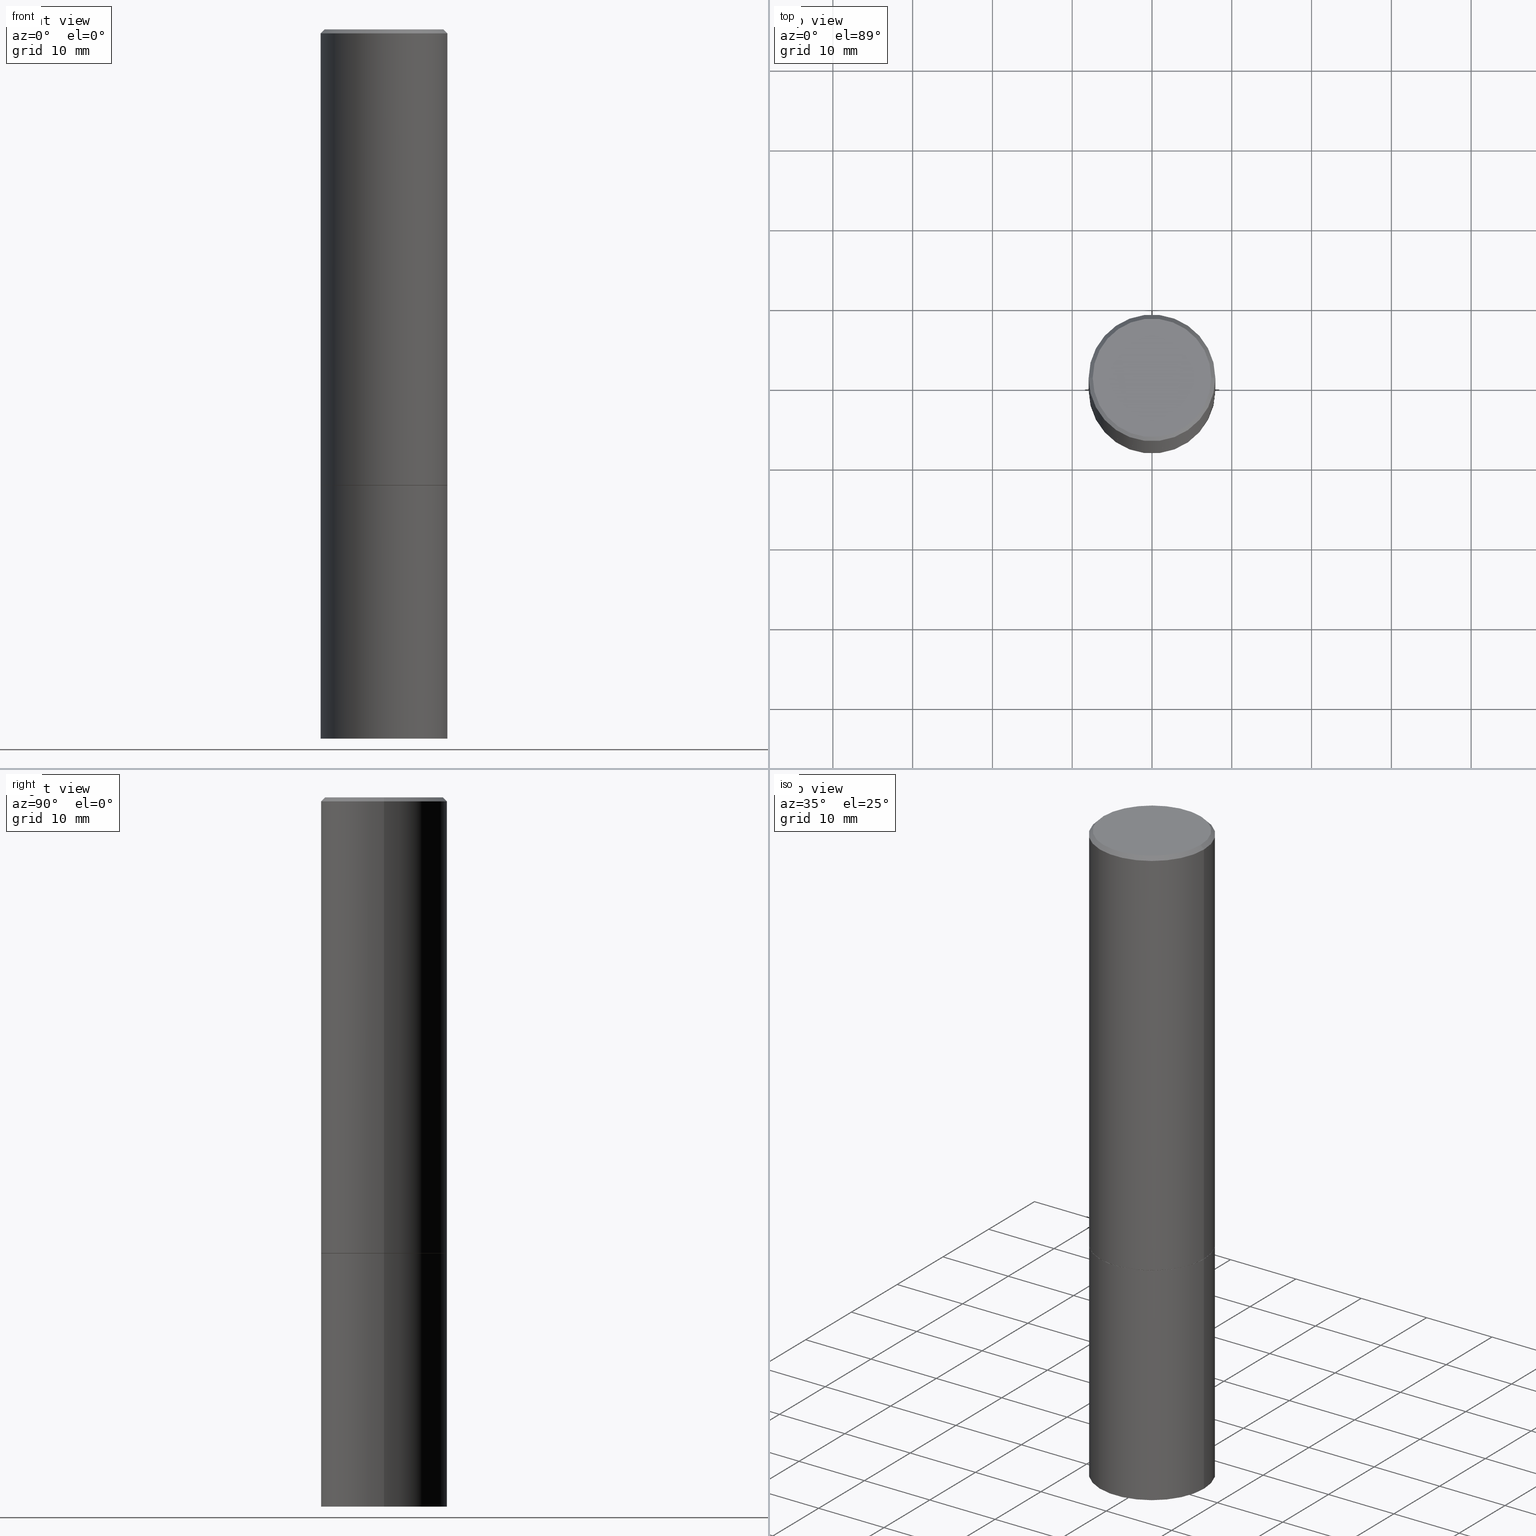
[diagram: canonical four-view strip — front | top / right | iso, engineering-drawing reading convention]
A machine part, canonical four-view strip (front | top / right | iso — engineering-drawing reading convention). The complete STEP part file that produces these views, byte-faithful:
ISO-10303-21;
HEADER;
FILE_DESCRIPTION (( 'STEP AP203' ),
    '1' );
FILE_NAME ('39767.STEP',
    '2024-02-28T01:19:56',
    ( '' ),
    ( '' ),
    'SwSTEP 2.0',
    'SolidWorks 2023',
    '' );
FILE_SCHEMA (( 'CONFIG_CONTROL_DESIGN' ));
ENDSEC;

DATA;
#1 = VECTOR ( 'NONE', #216, 39.37007874015748143 ) ;
#2 = AXIS2_PLACEMENT_3D ( 'NONE', #97, #326, #355 ) ;
#3 = CC_DESIGN_SECURITY_CLASSIFICATION ( #134, ( #245 ) ) ;
#4 = VERTEX_POINT ( 'NONE', #323 ) ;
#5 = ORIENTED_EDGE ( 'NONE', *, *, #88, .F. ) ;
#6 = EDGE_CURVE ( 'NONE', #4, #84, #361, .T. ) ;
#7 = VECTOR ( 'NONE', #283, 39.37007874015748143 ) ;
#8 = CARTESIAN_POINT ( 'NONE',  ( 0.000000000000000000, 0.000000000000000000, 0.000000000000000000 ) ) ;
#9 = CARTESIAN_POINT ( 'NONE',  ( 0.3125000000000000000, -1.440236052272796769E-14, -3.500000000000000000 ) ) ;
#10 = FACE_OUTER_BOUND ( 'NONE', #147, .T. ) ;
#11 = DATE_TIME_ROLE ( 'classification_date' ) ;
#12 = DIRECTION ( 'NONE',  ( 2.438088387897960049E-29, -3.491481338843145188E-15, -1.000000000000000000 ) ) ;
#13 = COORDINATED_UNIVERSAL_TIME_OFFSET ( 5, 0, .BEHIND. ) ;
#14 = ADVANCED_FACE ( 'NONE', ( #120 ), #256, .T. ) ;
#15 = DIRECTION ( 'NONE',  ( 1.000000000000000000, -6.982962677686266711E-15, 4.876176775795936353E-29 ) ) ;
#16 = FACE_OUTER_BOUND ( 'NONE', #292, .T. ) ;
#17 = DIRECTION ( 'NONE',  ( 1.000000000000000000, -6.982962677686266711E-15, 0.000000000000000000 ) ) ;
#18 = PERSON_AND_ORGANIZATION ( #358, #123 ) ;
#19 = FACE_OUTER_BOUND ( 'NONE', #193, .T. ) ;
#20 = LOCAL_TIME ( 20, 19, 56.00000000000000000, #13 ) ;
#21 = DIRECTION ( 'NONE',  ( -2.445468806185136597E-29, 3.491481338843145583E-15, 1.000000000000000000 ) ) ;
#22 = CYLINDRICAL_SURFACE ( 'NONE', #257, 0.3125000000000000000 ) ;
#23 = COORDINATED_UNIVERSAL_TIME_OFFSET ( 5, 0, .BEHIND. ) ;
#24 = ORIENTED_EDGE ( 'NONE', *, *, #139, .T. ) ;
#25 = MECHANICAL_CONTEXT ( 'NONE', #72, 'mechanical' ) ;
#26 = VERTEX_POINT ( 'NONE', #141 ) ;
#27 = APPROVAL_ROLE ( '' ) ;
#28 = CIRCLE ( 'NONE', #129, 0.3125000000000000000 ) ;
#29 = ORIENTED_EDGE ( 'NONE', *, *, #244, .F. ) ;
#30 = ORIENTED_EDGE ( 'NONE', *, *, #104, .F. ) ;
#31 = DIRECTION ( 'NONE',  ( -2.445468806185136597E-29, 3.491481338843145583E-15, 1.000000000000000000 ) ) ;
#32 = CIRCLE ( 'NONE', #45, 0.2924999999999998712 ) ;
#33 = VERTEX_POINT ( 'NONE', #263 ) ;
#34 = CARTESIAN_POINT ( 'NONE',  ( 0.3125000000000000000, -1.003451736783519063E-14, -2.248999999999999666 ) ) ;
#35 = PERSON_AND_ORGANIZATION_ROLE ( 'design_supplier' ) ;
#36 = ORIENTED_EDGE ( 'NONE', *, *, #192, .F. ) ;
#37 = CARTESIAN_POINT ( 'NONE',  ( -0.3124999999999999445, 2.220446049250312686E-15, -1.537167215704657671E-29 ) ) ;
#38 = CIRCLE ( 'NONE', #81, 0.3114999999999999991 ) ;
#39 = AXIS2_PLACEMENT_3D ( 'NONE', #61, #182, #220 ) ;
#40 = CARTESIAN_POINT ( 'NONE',  ( -0.2924999999999998712, 2.077431396611663005E-15, -1.440630921208799661E-29 ) ) ;
#41 = LINE ( 'NONE', #183, #1 ) ;
#42 = CARTESIAN_POINT ( 'NONE',  ( 0.3125000000000000000, -2.182175836776958347E-15, 1.523805242436230075E-29 ) ) ;
#43 = DIRECTION ( 'NONE',  ( 2.445468806185136597E-29, -3.491481338843145583E-15, -1.000000000000000000 ) ) ;
#44 = VECTOR ( 'NONE', #110, 39.37007874015748143 ) ;
#45 = AXIS2_PLACEMENT_3D ( 'NONE', #76, #234, #79 ) ;
#46 = CARTESIAN_POINT ( 'NONE',  ( 5.502304813916556222E-29, -7.855833012397076871E-15, -2.249999999999999556 ) ) ;
#47 = DIRECTION ( 'NONE',  ( 1.000000000000000000, -6.982962677686269077E-15, 0.000000000000000000 ) ) ;
#48 = APPROVAL_DATE_TIME ( #140, #224 ) ;
#49 = DIRECTION ( 'NONE',  ( -2.445468806185136597E-29, 3.491481338843145583E-15, 1.000000000000000000 ) ) ;
#50 = APPROVAL_ROLE ( '' ) ;
#51 = CLOSED_SHELL ( 'NONE', ( #331, #341, #83, #305 ) ) ;
#52 = CONICAL_SURFACE ( 'NONE', #55, 0.3124999999999998890, 0.7853981633974472798 ) ;
#53 = EDGE_CURVE ( 'NONE', #218, #213, #38, .T. ) ;
#54 = EDGE_CURVE ( 'NONE', #316, #103, #293, .T. ) ;
#55 = AXIS2_PLACEMENT_3D ( 'NONE', #253, #43, #315 ) ;
#56 = DATE_AND_TIME ( #320, #271 ) ;
#57 = PRODUCT_DEFINITION_SHAPE ( 'NONE', 'NONE',  #364 ) ;
#58 = PLANE ( 'NONE',  #212 ) ;
#59 = CARTESIAN_POINT ( 'NONE',  ( 5.499859345110371740E-29, -7.852341531058233864E-15, -2.248999999999999666 ) ) ;
#60 = ORIENTED_EDGE ( 'NONE', *, *, #113, .T. ) ;
#61 = CARTESIAN_POINT ( 'NONE',  ( 4.890937612370289799E-31, -6.982962677686315028E-17, -0.02000000000000006981 ) ) ;
#62 = APPROVAL ( #185, 'UNSPECIFIED' ) ;
#63 = AXIS2_PLACEMENT_3D ( 'NONE', #121, #248, #89 ) ;
#64 = CARTESIAN_POINT ( 'NONE',  ( -0.3114999999999999991, -5.642492390504363220E-15, -2.249999999999999556 ) ) ;
#65 = PERSON_AND_ORGANIZATION ( #358, #123 ) ;
#66 = DIRECTION ( 'NONE',  ( -0.7071067811865467956, 2.468850131082249172E-15, -0.7071067811865482389 ) ) ;
#67 = DIRECTION ( 'NONE',  ( 2.438088387897960049E-29, -3.491481338843145188E-15, -1.000000000000000000 ) ) ;
#68 = CC_DESIGN_PERSON_AND_ORGANIZATION_ASSIGNMENT ( #90, #35, ( #245 ) ) ;
#69 = DIRECTION ( 'NONE',  ( -0.7071067811866199593, 7.493145998870616062E-15, 0.7071067811864750752 ) ) ;
#70 = DIRECTION ( 'NONE',  ( -2.445468806185136597E-29, 3.491481338843145583E-15, 1.000000000000000000 ) ) ;
#71 = DIRECTION ( 'NONE',  ( -2.445468806185136597E-29, 3.491481338843145583E-15, 1.000000000000000000 ) ) ;
#72 = APPLICATION_CONTEXT ( 'configuration controlled 3d designs of mechanical parts and assemblies' ) ;
#73 = CARTESIAN_POINT ( 'NONE',  ( -0.3124999999999998890, 2.112346210000094260E-15, -0.02000000000000006981 ) ) ;
#74 = ORIENTED_EDGE ( 'NONE', *, *, #53, .F. ) ;
#75 = AXIS2_PLACEMENT_3D ( 'NONE', #46, #190, #195 ) ;
#76 = CARTESIAN_POINT ( 'NONE',  ( 0.000000000000000000, 0.000000000000000000, 0.000000000000000000 ) ) ;
#77 = APPROVAL_DATE_TIME ( #196, #62 ) ;
#78 = CALENDAR_DATE ( 2024, 27, 2 ) ;
#79 = DIRECTION ( 'NONE',  ( 1.000000000000000000, -6.982962677686266711E-15, 4.876176775795935232E-29 ) ) ;
#80 = EDGE_CURVE ( 'NONE', #213, #218, #261, .T. ) ;
#81 = AXIS2_PLACEMENT_3D ( 'NONE', #360, #221, #127 ) ;
#82 = UNCERTAINTY_MEASURE_WITH_UNIT (LENGTH_MEASURE( 1.000000000000000082E-05 ), #309, 'distance_accuracy_value', 'NONE');
#83 = ADVANCED_FACE ( 'NONE', ( #188 ), #304, .F. ) ;
#84 = VERTEX_POINT ( 'NONE', #9 ) ;
#85 = COORDINATED_UNIVERSAL_TIME_OFFSET ( 5, 0, .BEHIND. ) ;
#86 = CONICAL_SURFACE ( 'NONE', #63, 0.3114999999999999991, 0.7853981633975507526 ) ;
#87 = CARTESIAN_POINT ( 'NONE',  ( 5.502304813916556222E-29, -7.855833012397075293E-15, -2.249999999999999556 ) ) ;
#88 = EDGE_CURVE ( 'NONE', #4, #33, #41, .T. ) ;
#89 = DIRECTION ( 'NONE',  ( 1.000000000000000000, -6.982962677686269077E-15, 0.000000000000000000 ) ) ;
#90 = PERSON_AND_ORGANIZATION ( #358, #123 ) ;
#91 = CARTESIAN_POINT ( 'NONE',  ( 0.3125000000000000000, -1.003800884917403522E-14, -2.249999999999999556 ) ) ;
#92 = AXIS2_PLACEMENT_3D ( 'NONE', #161, #301, #17 ) ;
#93 = CIRCLE ( 'NONE', #39, 0.3124999999999998890 ) ;
#94 = CYLINDRICAL_SURFACE ( 'NONE', #338, 0.3124999999999999445 ) ;
#95 = CC_DESIGN_DATE_AND_TIME_ASSIGNMENT ( #194, #298, ( #364 ) ) ;
#96 = DIRECTION ( 'NONE',  ( -2.445468806185136877E-29, 3.491481338843145188E-15, 1.000000000000000000 ) ) ;
#97 = CARTESIAN_POINT ( 'NONE',  ( 5.502304813916556222E-29, -7.855833012397075293E-15, -2.249999999999999556 ) ) ;
#98 = APPROVAL_DATE_TIME ( #56, #116 ) ;
#99 = EDGE_CURVE ( 'NONE', #235, #26, #219, .T. ) ;
#100 = DIRECTION ( 'NONE',  ( 1.000000000000000000, -6.982962677686265133E-15, 0.000000000000000000 ) ) ;
#101 = EDGE_CURVE ( 'NONE', #218, #316, #124, .T. ) ;
#102 = VECTOR ( 'NONE', #307, 39.37007874015748143 ) ;
#103 = VERTEX_POINT ( 'NONE', #34 ) ;
#104 = EDGE_CURVE ( 'NONE', #118, #33, #28, .T. ) ;
#105 = LINE ( 'NONE', #200, #7 ) ;
#106 = DIRECTION ( 'NONE',  ( -1.000000000000000000, 6.982962677686265922E-15, -4.876176775795935793E-29 ) ) ;
#107 = PERSON_AND_ORGANIZATION_ROLE ( 'design_owner' ) ;
#108 = ORIENTED_EDGE ( 'NONE', *, *, #80, .T. ) ;
#109 = CIRCLE ( 'NONE', #354, 0.3125000000000000000 ) ;
#110 = DIRECTION ( 'NONE',  ( -2.445468806185136877E-29, 3.491481338843145188E-15, 1.000000000000000000 ) ) ;
#111 = ADVANCED_FACE ( 'NONE', ( #300 ), #126, .F. ) ;
#112 = ORIENTED_EDGE ( 'NONE', *, *, #99, .F. ) ;
#113 = EDGE_CURVE ( 'NONE', #285, #179, #232, .T. ) ;
#114 = EDGE_LOOP ( 'NONE', ( #314, #180, #259, #242 ) ) ;
#115 = AXIS2_PLACEMENT_3D ( 'NONE', #87, #31, #291 ) ;
#116 = APPROVAL ( #317, 'UNSPECIFIED' ) ;
#117 = LOCAL_TIME ( 20, 19, 56.00000000000000000, #158 ) ;
#118 = VERTEX_POINT ( 'NONE', #91 ) ;
#119 = ORIENTED_EDGE ( 'NONE', *, *, #80, .F. ) ;
#120 = FACE_OUTER_BOUND ( 'NONE', #344, .T. ) ;
#121 = CARTESIAN_POINT ( 'NONE',  ( 5.502304813916556222E-29, -7.855833012397075293E-15, -2.249999999999999556 ) ) ;
#122 = DIMENSIONAL_EXPONENTS ( 1.000000000000000000, 0.000000000000000000, 0.000000000000000000, 0.000000000000000000, 0.000000000000000000, 0.000000000000000000, 0.000000000000000000 ) ;
#123 = ORGANIZATION ( 'UNSPECIFIED', 'UNSPECIFIED', '' ) ;
#124 = LINE ( 'NONE', #64, #197 ) ;
#125 = EDGE_CURVE ( 'NONE', #285, #26, #223, .T. ) ;
#126 = PLANE ( 'NONE',  #176 ) ;
#127 = DIRECTION ( 'NONE',  ( 1.000000000000000000, -6.982962677686269077E-15, 0.000000000000000000 ) ) ;
#128 = DIRECTION ( 'NONE',  ( -2.445468806185136597E-29, 3.491481338843145583E-15, 1.000000000000000000 ) ) ;
#129 = AXIS2_PLACEMENT_3D ( 'NONE', #184, #272, #252 ) ;
#130 = VECTOR ( 'NONE', #313, 39.37007874015748143 ) ;
#131 = DIRECTION ( 'NONE',  ( 1.000000000000000000, -6.982962677686266711E-15, 4.876176775795936353E-29 ) ) ;
#132 = FACE_OUTER_BOUND ( 'NONE', #349, .T. ) ;
#133 = CARTESIAN_POINT ( 'NONE',  ( 5.499859345110371740E-29, -7.852341531058233864E-15, -2.248999999999999666 ) ) ;
#134 = SECURITY_CLASSIFICATION ( '', '', #155 ) ;
#135 =( NAMED_UNIT ( * ) SI_UNIT ( $, .STERADIAN. ) SOLID_ANGLE_UNIT ( ) );
#136 = CARTESIAN_POINT ( 'NONE',  ( 0.000000000000000000, 0.000000000000000000, 0.000000000000000000 ) ) ;
#137 = AXIS2_PLACEMENT_3D ( 'NONE', #8, #186, #280 ) ;
#138 = AXIS2_PLACEMENT_3D ( 'NONE', #260, #162, #47 ) ;
#139 = EDGE_CURVE ( 'NONE', #179, #235, #322, .T. ) ;
#140 = DATE_AND_TIME ( #78, #239 ) ;
#141 = CARTESIAN_POINT ( 'NONE',  ( 0.3124999999999998890, -2.213735251080466123E-15, -0.02000000000000006981 ) ) ;
#142 = CC_DESIGN_PERSON_AND_ORGANIZATION_ASSIGNMENT ( #264, #170, ( #364 ) ) ;
#143 = ORIENTED_EDGE ( 'NONE', *, *, #254, .F. ) ;
#144 = ORIENTED_EDGE ( 'NONE', *, *, #217, .T. ) ;
#145 = AXIS2_PLACEMENT_3D ( 'NONE', #251, #351, #15 ) ;
#146 = ORIENTED_EDGE ( 'NONE', *, *, #277, .T. ) ;
#147 = EDGE_LOOP ( 'NONE', ( #178, #294, #201, #209 ) ) ;
#148 = CC_DESIGN_PERSON_AND_ORGANIZATION_ASSIGNMENT ( #18, #302, ( #245 ) ) ;
#149 = ORIENTED_EDGE ( 'NONE', *, *, #254, .T. ) ;
#150 = CARTESIAN_POINT ( 'NONE',  ( 2.042516583223231751E-15, 0.2924999999999998712, -1.021258291611619622E-15 ) ) ;
#151 = LOCAL_TIME ( 20, 19, 56.00000000000000000, #262 ) ;
#152 = DIRECTION ( 'NONE',  ( 1.000000000000000000, -6.982962677686265133E-15, 0.000000000000000000 ) ) ;
#153 = ADVANCED_FACE ( 'NONE', ( #303 ), #58, .F. ) ;
#154 = DIRECTION ( 'NONE',  ( -2.438088387897960049E-29, 3.491481338843145188E-15, 1.000000000000000000 ) ) ;
#155 = SECURITY_CLASSIFICATION_LEVEL ( 'unclassified' ) ;
#156 = CARTESIAN_POINT ( 'NONE',  ( 0.000000000000000000, 0.000000000000000000, 0.000000000000000000 ) ) ;
#157 = MANIFOLD_SOLID_BREP ( 'Body-Move/Copy2[2]', #160 ) ;
#158 = COORDINATED_UNIVERSAL_TIME_OFFSET ( 5, 0, .BEHIND. ) ;
#159 = DIRECTION ( 'NONE',  ( -1.000000000000000000, 6.982962677686265922E-15, -4.876176775795935793E-29 ) ) ;
#160 = CLOSED_SHELL ( 'NONE', ( #14, #164, #327, #258, #175, #198, #111, #153 ) ) ;
#161 = CARTESIAN_POINT ( 'NONE',  ( 4.890937612370289799E-31, -6.982962677686315028E-17, -0.02000000000000006981 ) ) ;
#162 = DIRECTION ( 'NONE',  ( -2.445468806185136597E-29, 3.491481338843145583E-15, 1.000000000000000000 ) ) ;
#163 = CARTESIAN_POINT ( 'NONE',  ( 0.3114999999999999991, -1.003102588649634920E-14, -2.249999999999999556 ) ) ;
#164 = ADVANCED_FACE ( 'NONE', ( #329 ), #94, .T. ) ;
#165 = AXIS2_PLACEMENT_3D ( 'NONE', #330, #67, #308 ) ;
#166 = CC_DESIGN_APPROVAL ( #62, ( #134 ) ) ;
#167 = ORIENTED_EDGE ( 'NONE', *, *, #104, .T. ) ;
#168 = FACE_OUTER_BOUND ( 'NONE', #169, .T. ) ;
#169 = EDGE_LOOP ( 'NONE', ( #146, #207, #30, #143 ) ) ;
#170 = PERSON_AND_ORGANIZATION_ROLE ( 'creator' ) ;
#171 = DIRECTION ( 'NONE',  ( 1.000000000000000000, -6.982962677686266711E-15, 4.876176775795936353E-29 ) ) ;
#172 = ORIENTED_EDGE ( 'NONE', *, *, #54, .T. ) ;
#173 = CARTESIAN_POINT ( 'NONE',  ( 8.559140821647976968E-29, -1.222018468595100934E-14, -3.500000000000000000 ) ) ;
#174 = ORIENTED_EDGE ( 'NONE', *, *, #228, .T. ) ;
#175 = ADVANCED_FACE ( 'NONE', ( #247 ), #306, .T. ) ;
#176 = AXIS2_PLACEMENT_3D ( 'NONE', #275, #154, #187 ) ;
#177 = CIRCLE ( 'NONE', #138, 0.3125000000000000000 ) ;
#178 = ORIENTED_EDGE ( 'NONE', *, *, #101, .F. ) ;
#179 = VERTEX_POINT ( 'NONE', #40 ) ;
#180 = ORIENTED_EDGE ( 'NONE', *, *, #192, .T. ) ;
#181 = AXIS2_PLACEMENT_3D ( 'NONE', #59, #70, #152 ) ;
#182 = DIRECTION ( 'NONE',  ( -2.445468806185136597E-29, 3.491481338843145583E-15, 1.000000000000000000 ) ) ;
#183 = CARTESIAN_POINT ( 'NONE',  ( -0.3125000000000000000, 2.220446049250313081E-15, -1.537167215704658232E-29 ) ) ;
#184 = CARTESIAN_POINT ( 'NONE',  ( 5.502304813916556222E-29, -7.855833012397076871E-15, -2.249999999999999556 ) ) ;
#185 = APPROVAL_STATUS ( 'not_yet_approved' ) ;
#186 = DIRECTION ( 'NONE',  ( -2.445468806185136597E-29, 3.491481338843145583E-15, 1.000000000000000000 ) ) ;
#187 = DIRECTION ( 'NONE',  ( 1.000000000000000000, -6.982962677686265922E-15, 4.876176775795935793E-29 ) ) ;
#188 = FACE_OUTER_BOUND ( 'NONE', #211, .T. ) ;
#189 = AXIS2_PLACEMENT_3D ( 'NONE', #359, #231, #106 ) ;
#190 = DIRECTION ( 'NONE',  ( -2.445468806185136597E-29, 3.491481338843145583E-15, 1.000000000000000000 ) ) ;
#191 = LENGTH_MEASURE_WITH_UNIT ( LENGTH_MEASURE( 0.02539999999999999897 ), #362 );
#192 = EDGE_CURVE ( 'NONE', #316, #235, #281, .T. ) ;
#193 = EDGE_LOOP ( 'NONE', ( #241, #346, #24, #215 ) ) ;
#194 = DATE_AND_TIME ( #238, #151 ) ;
#195 = DIRECTION ( 'NONE',  ( 1.000000000000000000, -6.982962677686269077E-15, 0.000000000000000000 ) ) ;
#196 = DATE_AND_TIME ( #289, #20 ) ;
#197 = VECTOR ( 'NONE', #69, 39.37007874015748143 ) ;
#198 = ADVANCED_FACE ( 'NONE', ( #10 ), #86, .T. ) ;
#199 = EDGE_CURVE ( 'NONE', #26, #235, #93, .T. ) ;
#200 = CARTESIAN_POINT ( 'NONE',  ( 0.3124999999999999445, -2.182175836776957953E-15, 1.523805242436229795E-29 ) ) ;
#201 = ORIENTED_EDGE ( 'NONE', *, *, #244, .T. ) ;
#202 = CARTESIAN_POINT ( 'NONE',  ( 4.890937612370289799E-31, -6.982962677686315028E-17, -0.02000000000000006981 ) ) ;
#203 = SHAPE_DEFINITION_REPRESENTATION ( #57, #318 ) ;
#204 = ORIENTED_EDGE ( 'NONE', *, *, #6, .F. ) ;
#205 = ORIENTED_EDGE ( 'NONE', *, *, #277, .F. ) ;
#206 = APPROVAL_PERSON_ORGANIZATION ( #273, #116, #27 ) ;
#207 = ORIENTED_EDGE ( 'NONE', *, *, #88, .T. ) ;
#208 = ORIENTED_EDGE ( 'NONE', *, *, #343, .T. ) ;
#209 = ORIENTED_EDGE ( 'NONE', *, *, #54, .F. ) ;
#210 = EDGE_LOOP ( 'NONE', ( #205, #204 ) ) ;
#211 = EDGE_LOOP ( 'NONE', ( #167, #208 ) ) ;
#212 = AXIS2_PLACEMENT_3D ( 'NONE', #150, #12, #159 ) ;
#213 = VERTEX_POINT ( 'NONE', #163 ) ;
#214 = ORIENTED_EDGE ( 'NONE', *, *, #125, .T. ) ;
#215 = ORIENTED_EDGE ( 'NONE', *, *, #99, .T. ) ;
#216 = DIRECTION ( 'NONE',  ( -2.445468806185136877E-29, 3.491481338843145188E-15, 1.000000000000000000 ) ) ;
#217 = EDGE_CURVE ( 'NONE', #179, #285, #32, .T. ) ;
#218 = VERTEX_POINT ( 'NONE', #334 ) ;
#219 = CIRCLE ( 'NONE', #92, 0.3124999999999998890 ) ;
#220 = DIRECTION ( 'NONE',  ( 1.000000000000000000, -6.982962677686266711E-15, 0.000000000000000000 ) ) ;
#221 = DIRECTION ( 'NONE',  ( -2.445468806185136597E-29, 3.491481338843145583E-15, 1.000000000000000000 ) ) ;
#222 = PERSON_AND_ORGANIZATION ( #358, #123 ) ;
#223 = LINE ( 'NONE', #357, #102 ) ;
#224 = APPROVAL ( #336, 'UNSPECIFIED' ) ;
#225 = PLANE ( 'NONE',  #189 ) ;
#226 = APPROVAL_PERSON_ORGANIZATION ( #233, #224, #50 ) ;
#227 = DIRECTION ( 'NONE',  ( 1.000000000000000000, -6.982962677686266711E-15, 4.876176775795936353E-29 ) ) ;
#228 = EDGE_CURVE ( 'NONE', #103, #26, #105, .T. ) ;
#229 = CARTESIAN_POINT ( 'NONE',  ( 0.2924999999999998712, -2.110215457714318748E-15, 1.452077414963941102E-29 ) ) ;
#230 = PERSON_AND_ORGANIZATION ( #358, #123 ) ;
#231 = DIRECTION ( 'NONE',  ( 2.438088387897960049E-29, -3.491481338843145188E-15, -1.000000000000000000 ) ) ;
#232 = CIRCLE ( 'NONE', #137, 0.2924999999999998712 ) ;
#233 = PERSON_AND_ORGANIZATION ( #358, #123 ) ;
#234 = DIRECTION ( 'NONE',  ( -2.445468806185136597E-29, 3.491481338843145583E-15, 1.000000000000000000 ) ) ;
#235 = VERTEX_POINT ( 'NONE', #73 ) ;
#236 = APPLICATION_PROTOCOL_DEFINITION ( 'international standard', 'config_control_design', 1994, #267 ) ;
#237 = CC_DESIGN_PERSON_AND_ORGANIZATION_ASSIGNMENT ( #222, #356, ( #134 ) ) ;
#238 = CALENDAR_DATE ( 2024, 27, 2 ) ;
#239 = LOCAL_TIME ( 20, 19, 56.00000000000000000, #23 ) ;
#240 = APPLICATION_PROTOCOL_DEFINITION ( 'international standard', 'config_control_design', 1994, #72 ) ;
#241 = ORIENTED_EDGE ( 'NONE', *, *, #125, .F. ) ;
#242 = ORIENTED_EDGE ( 'NONE', *, *, #228, .F. ) ;
#243 = DIRECTION ( 'NONE',  ( 1.000000000000000000, -6.982962677686269077E-15, 0.000000000000000000 ) ) ;
#244 = EDGE_CURVE ( 'NONE', #213, #103, #311, .T. ) ;
#245 = PRODUCT_DEFINITION_FORMATION_WITH_SPECIFIED_SOURCE ( 'ANY', '', #249, .NOT_KNOWN. ) ;
#246 = CARTESIAN_POINT ( 'NONE',  ( 0.000000000000000000, 0.000000000000000000, 0.000000000000000000 ) ) ;
#247 = FACE_OUTER_BOUND ( 'NONE', #345, .T. ) ;
#248 = DIRECTION ( 'NONE',  ( -2.445468806185136597E-29, 3.491481338843145583E-15, 1.000000000000000000 ) ) ;
#249 = PRODUCT ( '39767', '39767', '', ( #25 ) ) ;
#250 = CC_DESIGN_APPROVAL ( #224, ( #364 ) ) ;
#251 = CARTESIAN_POINT ( 'NONE',  ( 0.000000000000000000, 0.000000000000000000, 0.000000000000000000 ) ) ;
#252 = DIRECTION ( 'NONE',  ( 1.000000000000000000, -6.982962677686269077E-15, 0.000000000000000000 ) ) ;
#253 = CARTESIAN_POINT ( 'NONE',  ( 4.890937612370289799E-31, -6.982962677686315028E-17, -0.02000000000000006981 ) ) ;
#254 = EDGE_CURVE ( 'NONE', #84, #118, #333, .T. ) ;
#255 = FACE_OUTER_BOUND ( 'NONE', #210, .T. ) ;
#256 = CONICAL_SURFACE ( 'NONE', #115, 0.3114999999999999991, 0.7853981633975507526 ) ;
#257 = AXIS2_PLACEMENT_3D ( 'NONE', #136, #21, #227 ) ;
#258 = ADVANCED_FACE ( 'NONE', ( #19 ), #52, .T. ) ;
#259 = ORIENTED_EDGE ( 'NONE', *, *, #199, .F. ) ;
#260 = CARTESIAN_POINT ( 'NONE',  ( 8.559140821647976968E-29, -1.222018468595100934E-14, -3.500000000000000000 ) ) ;
#261 = CIRCLE ( 'NONE', #2, 0.3114999999999999991 ) ;
#262 = COORDINATED_UNIVERSAL_TIME_OFFSET ( 5, 0, .BEHIND. ) ;
#263 = CARTESIAN_POINT ( 'NONE',  ( -0.3125000000000000000, -7.817562799923730025E-15, -2.249999999999999556 ) ) ;
#264 = PERSON_AND_ORGANIZATION ( #358, #123 ) ;
#265 = ORIENTED_EDGE ( 'NONE', *, *, #113, .F. ) ;
#266 = VECTOR ( 'NONE', #66, 39.37007874015748143 ) ;
#267 = APPLICATION_CONTEXT ( 'configuration controlled 3d designs of mechanical parts and assemblies' ) ;
#268 = DIRECTION ( 'NONE',  ( -2.445468806185136597E-29, 3.491481338843145583E-15, 1.000000000000000000 ) ) ;
#269 = DESIGN_CONTEXT ( 'detailed design', #267, 'design' ) ;
#270 = AXIS2_PLACEMENT_3D ( 'NONE', #173, #268, #243 ) ;
#271 = LOCAL_TIME ( 20, 19, 56.00000000000000000, #85 ) ;
#272 = DIRECTION ( 'NONE',  ( -2.445468806185136597E-29, 3.491481338843145583E-15, 1.000000000000000000 ) ) ;
#273 = PERSON_AND_ORGANIZATION ( #358, #123 ) ;
#274 = PRODUCT_RELATED_PRODUCT_CATEGORY ( 'detail', '', ( #249 ) ) ;
#275 = CARTESIAN_POINT ( 'NONE',  ( 5.502304813916556222E-29, -7.855833012397076871E-15, -2.249999999999999556 ) ) ;
#276 = CALENDAR_DATE ( 2024, 27, 2 ) ;
#277 = EDGE_CURVE ( 'NONE', #84, #4, #177, .T. ) ;
#278 = APPROVAL_ROLE ( '' ) ;
#279 = CONICAL_SURFACE ( 'NONE', #347, 0.3124999999999998890, 0.7853981633974472798 ) ;
#280 = DIRECTION ( 'NONE',  ( 1.000000000000000000, -6.982962677686266711E-15, 4.876176775795935232E-29 ) ) ;
#281 = LINE ( 'NONE', #37, #284 ) ;
#282 = MANIFOLD_SOLID_BREP ( 'Body-Move/Copy2[1]', #51 ) ;
#283 = DIRECTION ( 'NONE',  ( -2.445468806185136877E-29, 3.491481338843145188E-15, 1.000000000000000000 ) ) ;
#284 = VECTOR ( 'NONE', #96, 39.37007874015748143 ) ;
#285 = VERTEX_POINT ( 'NONE', #229 ) ;
#286 = CARTESIAN_POINT ( 'NONE',  ( -0.3125000000000000000, -1.740639529667234514E-15, -2.248999999999999666 ) ) ;
#287 = CYLINDRICAL_SURFACE ( 'NONE', #312, 0.3125000000000000000 ) ;
#288 = CC_DESIGN_PERSON_AND_ORGANIZATION_ASSIGNMENT ( #230, #107, ( #249 ) ) ;
#289 = CALENDAR_DATE ( 2024, 27, 2 ) ;
#290 = AXIS2_PLACEMENT_3D ( 'NONE', #246, #350, #352 ) ;
#291 = DIRECTION ( 'NONE',  ( 1.000000000000000000, -6.982962677686269077E-15, 0.000000000000000000 ) ) ;
#292 = EDGE_LOOP ( 'NONE', ( #5, #324, #149, #365 ) ) ;
#293 = CIRCLE ( 'NONE', #181, 0.3125000000000000000 ) ;
#294 = ORIENTED_EDGE ( 'NONE', *, *, #53, .T. ) ;
#295 = ORIENTED_EDGE ( 'NONE', *, *, #101, .T. ) ;
#296 = ORIENTED_EDGE ( 'NONE', *, *, #139, .F. ) ;
#297 = EDGE_LOOP ( 'NONE', ( #144, #60 ) ) ;
#298 = DATE_TIME_ROLE ( 'creation_date' ) ;
#299 = CC_DESIGN_APPROVAL ( #116, ( #245 ) ) ;
#300 = FACE_OUTER_BOUND ( 'NONE', #340, .T. ) ;
#301 = DIRECTION ( 'NONE',  ( -2.445468806185136597E-29, 3.491481338843145583E-15, 1.000000000000000000 ) ) ;
#302 = PERSON_AND_ORGANIZATION_ROLE ( 'creator' ) ;
#303 = FACE_OUTER_BOUND ( 'NONE', #297, .T. ) ;
#304 = PLANE ( 'NONE',  #165 ) ;
#305 = ADVANCED_FACE ( 'NONE', ( #16 ), #22, .T. ) ;
#306 = CYLINDRICAL_SURFACE ( 'NONE', #145, 0.3124999999999999445 ) ;
#307 = DIRECTION ( 'NONE',  ( 0.7071067811865467956, -7.319954787623254468E-15, -0.7071067811865482389 ) ) ;
#308 = DIRECTION ( 'NONE',  ( -1.000000000000000000, 6.982962677686265922E-15, -4.876176775795935793E-29 ) ) ;
#309 =( CONVERSION_BASED_UNIT ( 'INCH', #191 ) LENGTH_UNIT ( ) NAMED_UNIT ( #122 ) );
#310 = ORIENTED_EDGE ( 'NONE', *, *, #199, .T. ) ;
#311 = LINE ( 'NONE', #339, #130 ) ;
#312 = AXIS2_PLACEMENT_3D ( 'NONE', #366, #49, #171 ) ;
#313 = DIRECTION ( 'NONE',  ( 0.7071067811866199593, -2.468850131083015945E-15, 0.7071067811864750752 ) ) ;
#314 = ORIENTED_EDGE ( 'NONE', *, *, #335, .T. ) ;
#315 = DIRECTION ( 'NONE',  ( -1.000000000000000000, 6.982962677686266711E-15, 0.000000000000000000 ) ) ;
#316 = VERTEX_POINT ( 'NONE', #286 ) ;
#317 = APPROVAL_STATUS ( 'not_yet_approved' ) ;
#318 = ADVANCED_BREP_SHAPE_REPRESENTATION ( '39767', ( #282, #157, #290 ), #342 ) ;
#319 = ORIENTED_EDGE ( 'NONE', *, *, #335, .F. ) ;
#320 = CALENDAR_DATE ( 2024, 27, 2 ) ;
#321 = CIRCLE ( 'NONE', #75, 0.3125000000000000000 ) ;
#322 = LINE ( 'NONE', #353, #266 ) ;
#323 = CARTESIAN_POINT ( 'NONE',  ( -0.3125000000000000000, -7.817562799923730025E-15, -3.500000000000000000 ) ) ;
#324 = ORIENTED_EDGE ( 'NONE', *, *, #6, .T. ) ;
#325 = APPROVAL_PERSON_ORGANIZATION ( #65, #62, #278 ) ;
#326 = DIRECTION ( 'NONE',  ( -2.445468806185136597E-29, 3.491481338843145583E-15, 1.000000000000000000 ) ) ;
#327 = ADVANCED_FACE ( 'NONE', ( #132 ), #279, .T. ) ;
#328 = DATE_AND_TIME ( #276, #117 ) ;
#329 = FACE_OUTER_BOUND ( 'NONE', #114, .T. ) ;
#330 = CARTESIAN_POINT ( 'NONE',  ( 2.182175836777013173E-15, 0.3124999999999921729, -2.250000000000000888 ) ) ;
#331 = ADVANCED_FACE ( 'NONE', ( #168 ), #287, .T. ) ;
#332 = DIRECTION ( 'NONE',  ( 2.445468806185136597E-29, -3.491481338843145583E-15, -1.000000000000000000 ) ) ;
#333 = LINE ( 'NONE', #42, #44 ) ;
#334 = CARTESIAN_POINT ( 'NONE',  ( -0.3114999999999999991, -5.637193936156140818E-15, -2.249999999999999556 ) ) ;
#335 = EDGE_CURVE ( 'NONE', #103, #316, #109, .T. ) ;
#336 = APPROVAL_STATUS ( 'not_yet_approved' ) ;
#337 = DIRECTION ( 'NONE',  ( -1.000000000000000000, 6.982962677686266711E-15, 0.000000000000000000 ) ) ;
#338 = AXIS2_PLACEMENT_3D ( 'NONE', #156, #128, #131 ) ;
#339 = CARTESIAN_POINT ( 'NONE',  ( 0.3114999999999999991, -1.003102588649634920E-14, -2.249999999999999556 ) ) ;
#340 = EDGE_LOOP ( 'NONE', ( #119, #74 ) ) ;
#341 = ADVANCED_FACE ( 'NONE', ( #255 ), #225, .T. ) ;
#342 =( GEOMETRIC_REPRESENTATION_CONTEXT ( 3 ) GLOBAL_UNCERTAINTY_ASSIGNED_CONTEXT ( ( #82 ) ) GLOBAL_UNIT_ASSIGNED_CONTEXT ( ( #309, #363, #135 ) ) REPRESENTATION_CONTEXT ( 'NONE', 'WORKASPACE' ) );
#343 = EDGE_CURVE ( 'NONE', #33, #118, #321, .T. ) ;
#344 = EDGE_LOOP ( 'NONE', ( #108, #295, #319, #29 ) ) ;
#345 = EDGE_LOOP ( 'NONE', ( #36, #172, #174, #112 ) ) ;
#346 = ORIENTED_EDGE ( 'NONE', *, *, #217, .F. ) ;
#347 = AXIS2_PLACEMENT_3D ( 'NONE', #202, #332, #337 ) ;
#348 = CC_DESIGN_DATE_AND_TIME_ASSIGNMENT ( #328, #11, ( #134 ) ) ;
#349 = EDGE_LOOP ( 'NONE', ( #265, #214, #310, #296 ) ) ;
#350 = DIRECTION ( 'NONE',  ( 0.000000000000000000, 0.000000000000000000, 1.000000000000000000 ) ) ;
#351 = DIRECTION ( 'NONE',  ( -2.445468806185136597E-29, 3.491481338843145583E-15, 1.000000000000000000 ) ) ;
#352 = DIRECTION ( 'NONE',  ( 1.000000000000000000, 0.000000000000000000, 0.000000000000000000 ) ) ;
#353 = CARTESIAN_POINT ( 'NONE',  ( -0.3124999999999998890, 2.112346210000094260E-15, -0.02000000000000006981 ) ) ;
#354 = AXIS2_PLACEMENT_3D ( 'NONE', #133, #71, #100 ) ;
#355 = DIRECTION ( 'NONE',  ( 1.000000000000000000, -6.982962677686269077E-15, 0.000000000000000000 ) ) ;
#356 = PERSON_AND_ORGANIZATION_ROLE ( 'classification_officer' ) ;
#357 = CARTESIAN_POINT ( 'NONE',  ( 0.3124999999999998890, -2.213735251080466123E-15, -0.02000000000000006981 ) ) ;
#358 = PERSON ( 'UNSPECIFIED', 'UNSPECIFIED', 'UNSPECIFIED', ('UNSPECIFIED'), ('UNSPECIFIED'), ('UNSPECIFIED') ) ;
#359 = CARTESIAN_POINT ( 'NONE',  ( 2.182175836777043938E-15, 0.3124999999999877875, -3.500000000000000888 ) ) ;
#360 = CARTESIAN_POINT ( 'NONE',  ( 5.502304813916556222E-29, -7.855833012397075293E-15, -2.249999999999999556 ) ) ;
#361 = CIRCLE ( 'NONE', #270, 0.3125000000000000000 ) ;
#362 =( LENGTH_UNIT ( ) NAMED_UNIT ( * ) SI_UNIT ( $, .METRE. ) );
#363 =( NAMED_UNIT ( * ) PLANE_ANGLE_UNIT ( ) SI_UNIT ( $, .RADIAN. ) );
#364 = PRODUCT_DEFINITION ( 'UNKNOWN', '', #245, #269 ) ;
#365 = ORIENTED_EDGE ( 'NONE', *, *, #343, .F. ) ;
#366 = CARTESIAN_POINT ( 'NONE',  ( 0.000000000000000000, 0.000000000000000000, 0.000000000000000000 ) ) ;
ENDSEC;
END-ISO-10303-21;
